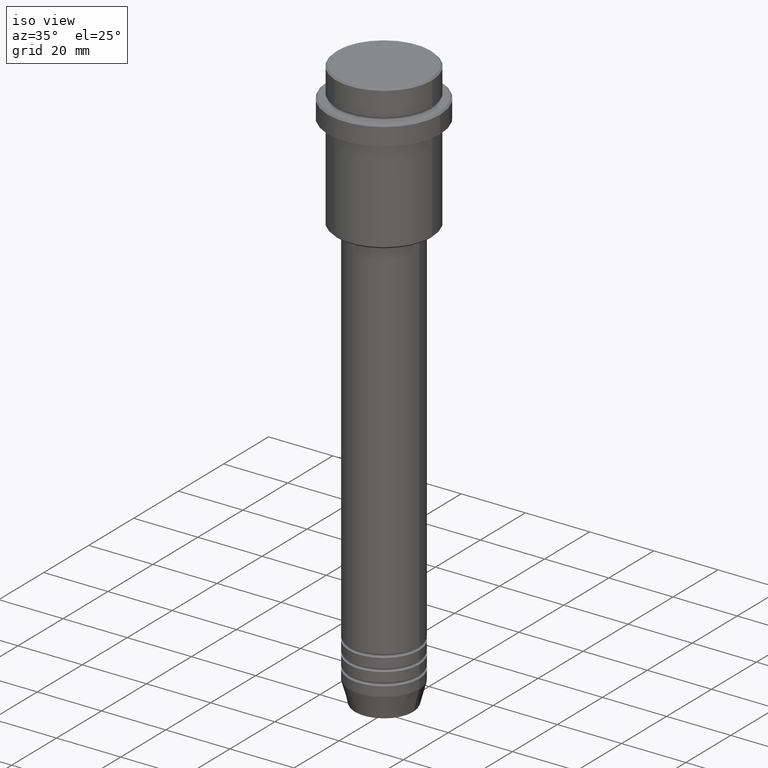
[diagram: clean part render]
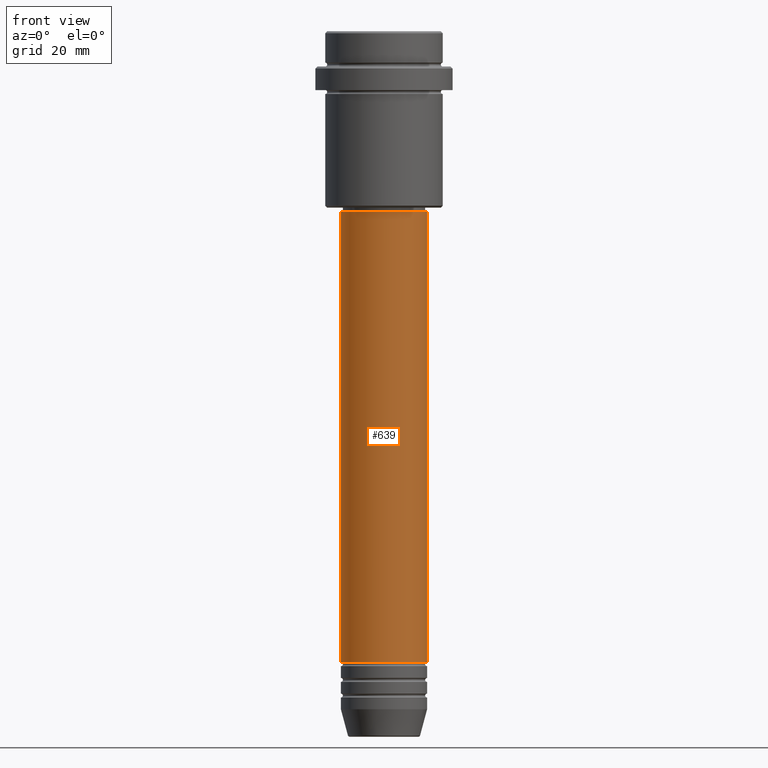
[diagram: tour spotlight — one face highlighted and labeled with its STEP entity id]
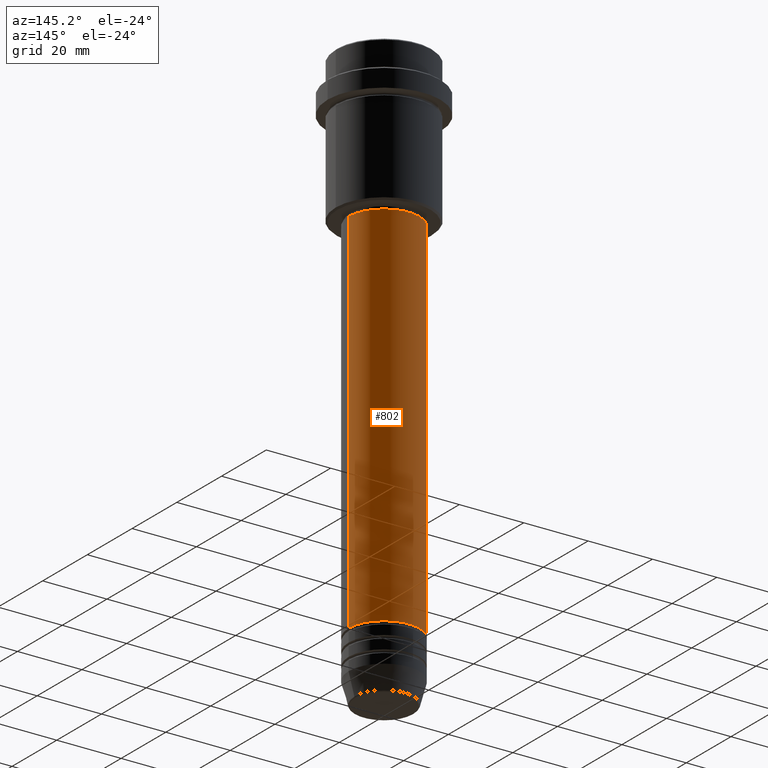
[diagram: tour spotlight — one face highlighted and labeled with its STEP entity id]
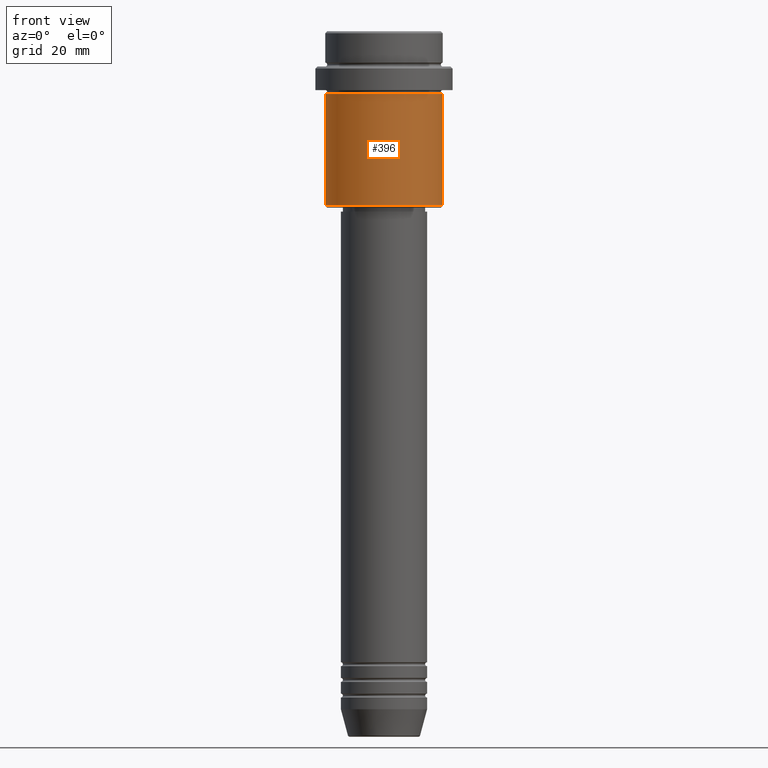
[diagram: tour spotlight — one face highlighted and labeled with its STEP entity id]
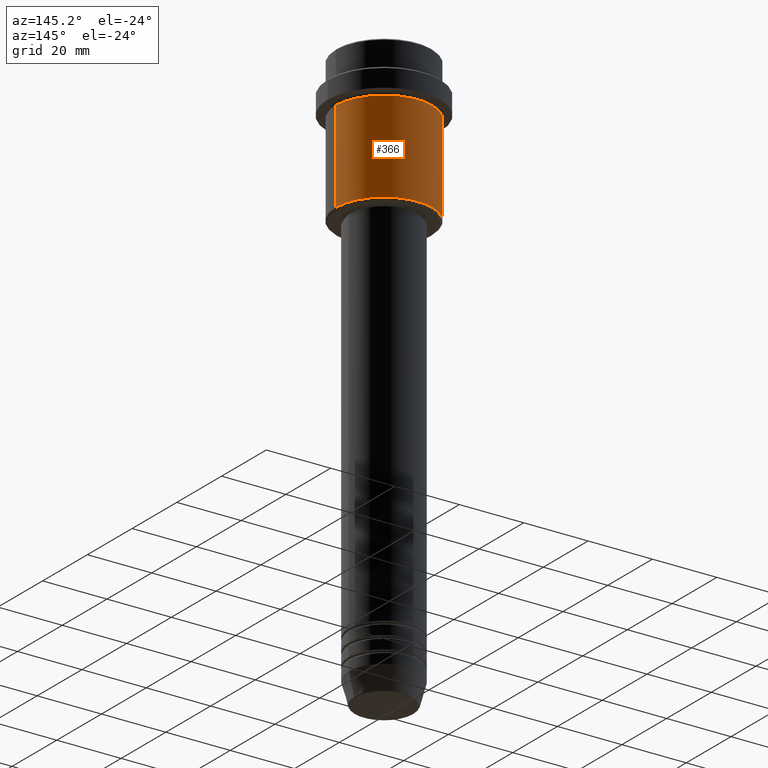
[diagram: tour spotlight — one face highlighted and labeled with its STEP entity id]
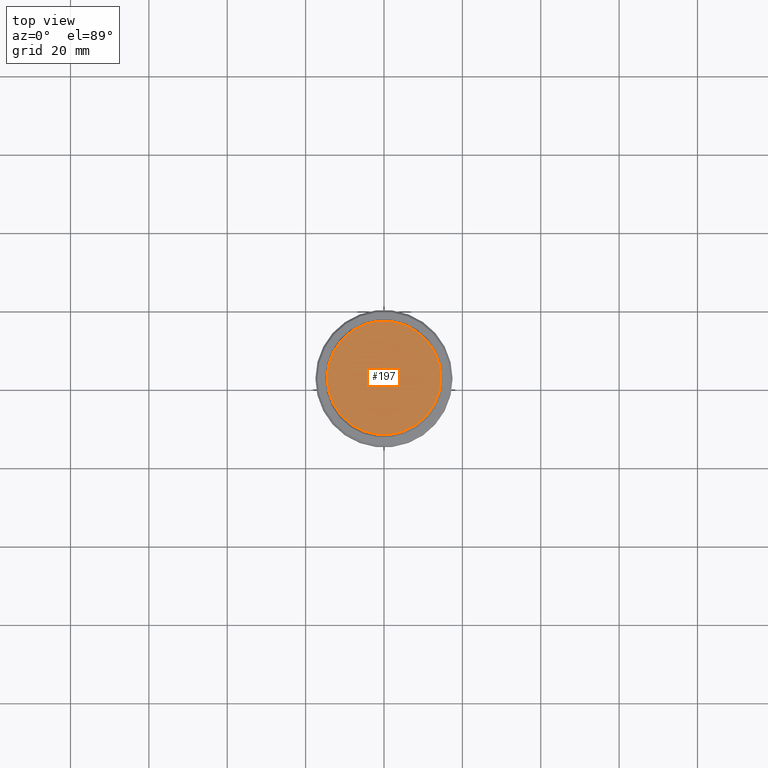
[diagram: tour spotlight — one face highlighted and labeled with its STEP entity id]
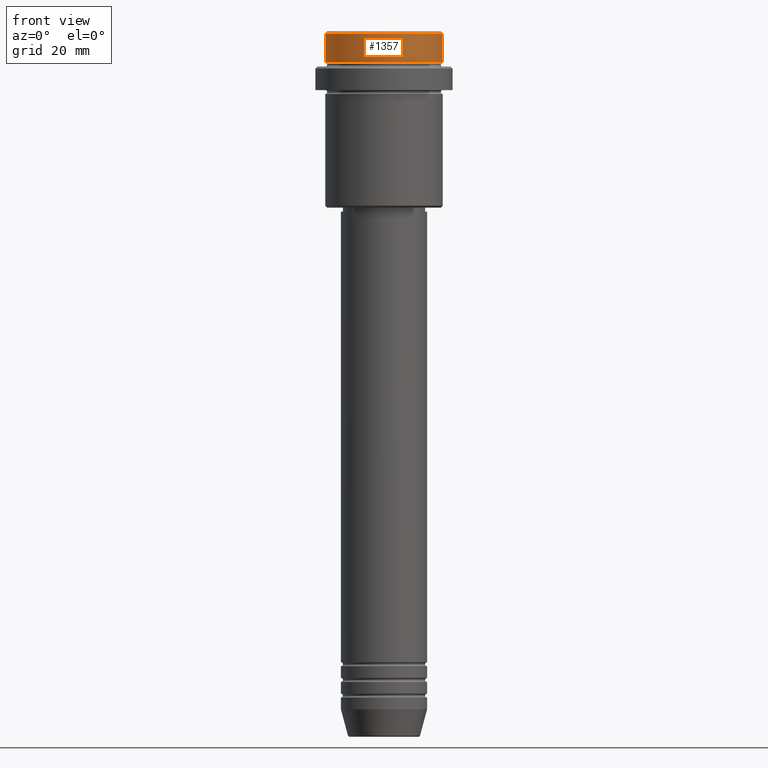
[diagram: tour spotlight — one face highlighted and labeled with its STEP entity id]
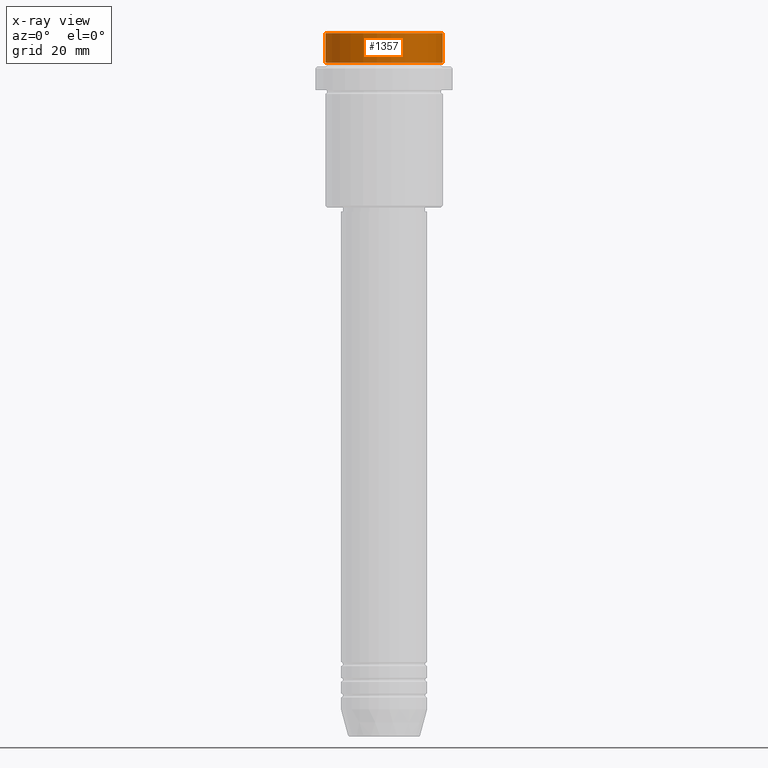
[diagram: x-ray of the same camera — body ghosted, this tour face saturated]
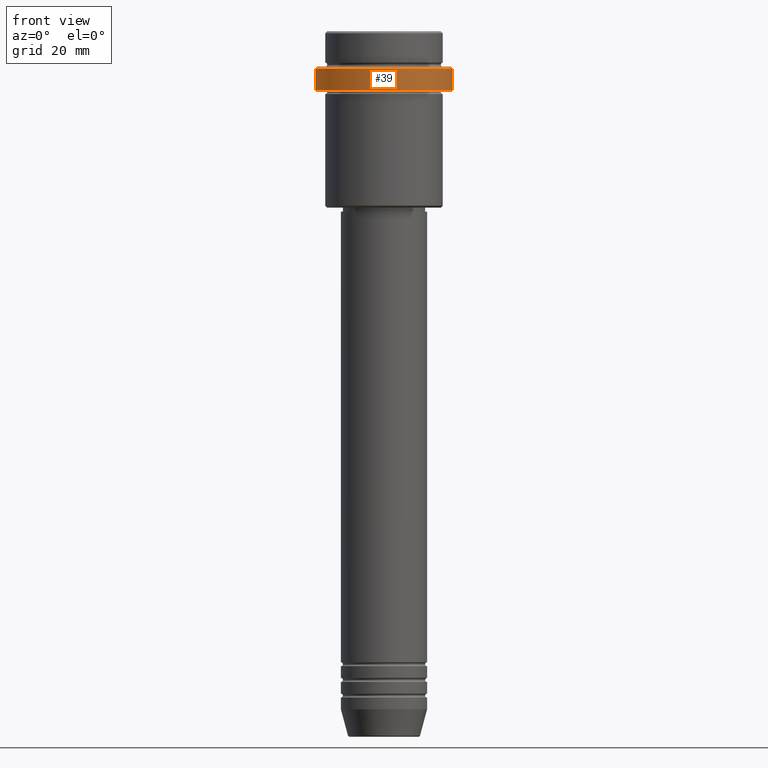
[diagram: tour spotlight — one face highlighted and labeled with its STEP entity id]
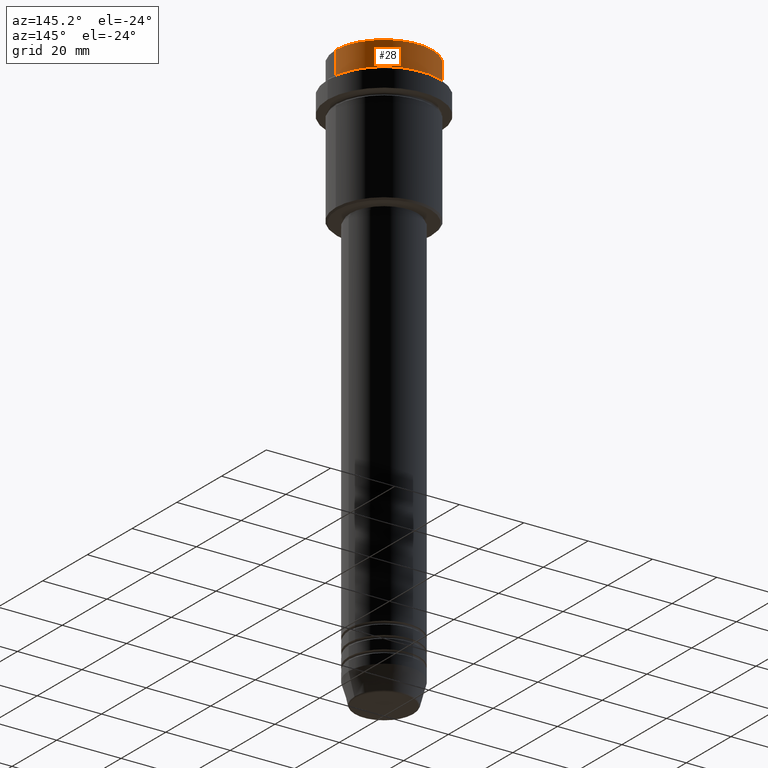
[diagram: tour spotlight — one face highlighted and labeled with its STEP entity id]
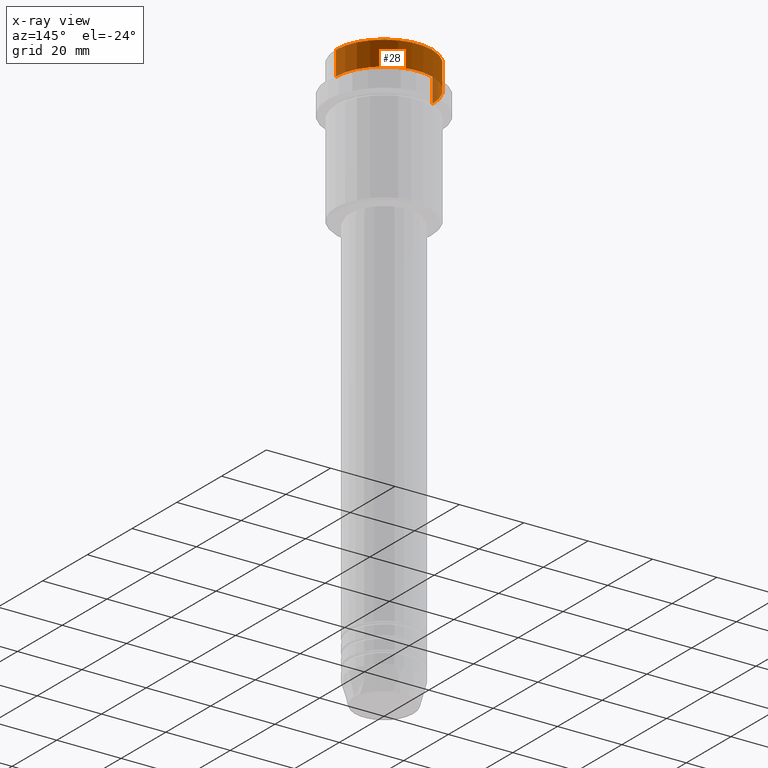
[diagram: x-ray of the same camera — body ghosted, this tour face saturated]
A machine part: a face-by-face anatomy tour. The part has 52 B-rep faces; the first image is the clean iso view, then the 8 largest visible faces are spotlighted one at a time (largest first), each with its STEP entity span.

Face 1 — front view, entity #639. In plain terms, the highlighted cylindrical surface (partial cylindrical patch) has radius 11 mm, axis along (-0, -0, 1).
Definition (entity closure, byte-faithful):
#149 = CARTESIAN_POINT ( 'NONE',  ( -10.99999999999999822, 1.347111479062088207E-15, -46.00000000000000000 ) ) ;
#177 = ORIENTED_EDGE ( 'NONE', *, *, #648, .F. ) ;
#183 = AXIS2_PLACEMENT_3D ( 'NONE', #836, #848, #1173 ) ;
#192 = FACE_OUTER_BOUND ( 'NONE', #314, .T. ) ;
#200 = VECTOR ( 'NONE', #699, 1000.000000000000000 ) ;
#208 = EDGE_CURVE ( 'NONE', #1398, #1175, #320, .T. ) ;
#218 = DIRECTION ( 'NONE',  ( -0.000000000000000000, -0.000000000000000000, 1.000000000000000000 ) ) ;
#242 = EDGE_CURVE ( 'NONE', #590, #521, #342, .T. ) ;
#305 = CYLINDRICAL_SURFACE ( 'NONE', #509, 11.00000000000000000 ) ;
#314 = EDGE_LOOP ( 'NONE', ( #177, #781, #487, #1105 ) ) ;
#320 = CIRCLE ( 'NONE', #183, 11.00000000000000000 ) ;
#342 = CIRCLE ( 'NONE', #508, 10.99999999999999822 ) ;
#376 = CARTESIAN_POINT ( 'NONE',  ( 11.00000000000000000, 0.000000000000000000, 0.000000000000000000 ) ) ;
#487 = ORIENTED_EDGE ( 'NONE', *, *, #572, .T. ) ;
#508 = AXIS2_PLACEMENT_3D ( 'NONE', #1305, #218, #1090 ) ;
#509 = AXIS2_PLACEMENT_3D ( 'NONE', #615, #1286, #1063 ) ;
#521 = VERTEX_POINT ( 'NONE', #1030 ) ;
#572 = EDGE_CURVE ( 'NONE', #1175, #521, #691, .T. ) ;
#590 = VERTEX_POINT ( 'NONE', #149 ) ;
#596 = CARTESIAN_POINT ( 'NONE',  ( -11.00000000000000000, 1.347111479062088405E-15, 0.000000000000000000 ) ) ;
#615 = CARTESIAN_POINT ( 'NONE',  ( 0.000000000000000000, 0.000000000000000000, 0.000000000000000000 ) ) ;
#639 = ADVANCED_FACE ( 'NONE', ( #192 ), #305, .T. ) ;
#648 = EDGE_CURVE ( 'NONE', #1398, #590, #936, .T. ) ;
#691 = LINE ( 'NONE', #376, #200 ) ;
#699 = DIRECTION ( 'NONE',  ( -0.000000000000000000, -0.000000000000000000, 1.000000000000000000 ) ) ;
#781 = ORIENTED_EDGE ( 'NONE', *, *, #208, .T. ) ;
#836 = CARTESIAN_POINT ( 'NONE',  ( 0.000000000000000000, 0.000000000000000000, -160.9999999999999147 ) ) ;
#848 = DIRECTION ( 'NONE',  ( -0.000000000000000000, -0.000000000000000000, 1.000000000000000000 ) ) ;
#936 = LINE ( 'NONE', #596, #1376 ) ;
#1030 = CARTESIAN_POINT ( 'NONE',  ( 10.99999999999999822, 0.000000000000000000, -46.00000000000000000 ) ) ;
#1042 = DIRECTION ( 'NONE',  ( -0.000000000000000000, -0.000000000000000000, 1.000000000000000000 ) ) ;
#1063 = DIRECTION ( 'NONE',  ( 1.000000000000000000, 0.000000000000000000, 0.000000000000000000 ) ) ;
#1090 = DIRECTION ( 'NONE',  ( 1.000000000000000000, 0.000000000000000000, 0.000000000000000000 ) ) ;
#1105 = ORIENTED_EDGE ( 'NONE', *, *, #242, .F. ) ;
#1173 = DIRECTION ( 'NONE',  ( 1.000000000000000000, 0.000000000000000000, 0.000000000000000000 ) ) ;
#1175 = VERTEX_POINT ( 'NONE', #1195 ) ;
#1195 = CARTESIAN_POINT ( 'NONE',  ( 11.00000000000000000, 0.000000000000000000, -160.9999999999999147 ) ) ;
#1286 = DIRECTION ( 'NONE',  ( -0.000000000000000000, -0.000000000000000000, 1.000000000000000000 ) ) ;
#1305 = CARTESIAN_POINT ( 'NONE',  ( 0.000000000000000000, 0.000000000000000000, -46.00000000000000000 ) ) ;
#1340 = CARTESIAN_POINT ( 'NONE',  ( -11.00000000000000000, 1.347111479062088405E-15, -160.9999999999999147 ) ) ;
#1376 = VECTOR ( 'NONE', #1042, 1000.000000000000000 ) ;
#1398 = VERTEX_POINT ( 'NONE', #1340 ) ;

Face 2 — auxiliary view, entity #802. In plain terms, the highlighted cylindrical surface (partial cylindrical patch) has radius 11 mm, axis along (-0, -0, 1).
Definition (entity closure, byte-faithful):
#69 = CIRCLE ( 'NONE', #867, 11.00000000000000000 ) ;
#72 = ORIENTED_EDGE ( 'NONE', *, *, #572, .F. ) ;
#80 = DIRECTION ( 'NONE',  ( 1.000000000000000000, 0.000000000000000000, 0.000000000000000000 ) ) ;
#109 = EDGE_CURVE ( 'NONE', #1175, #1398, #69, .T. ) ;
#128 = CARTESIAN_POINT ( 'NONE',  ( 0.000000000000000000, 0.000000000000000000, 0.000000000000000000 ) ) ;
#149 = CARTESIAN_POINT ( 'NONE',  ( -10.99999999999999822, 1.347111479062088207E-15, -46.00000000000000000 ) ) ;
#200 = VECTOR ( 'NONE', #699, 1000.000000000000000 ) ;
#250 = ORIENTED_EDGE ( 'NONE', *, *, #591, .F. ) ;
#287 = EDGE_LOOP ( 'NONE', ( #738, #1215, #250, #72 ) ) ;
#376 = CARTESIAN_POINT ( 'NONE',  ( 11.00000000000000000, 0.000000000000000000, 0.000000000000000000 ) ) ;
#398 = DIRECTION ( 'NONE',  ( -0.000000000000000000, -0.000000000000000000, 1.000000000000000000 ) ) ;
#457 = AXIS2_PLACEMENT_3D ( 'NONE', #580, #398, #80 ) ;
#521 = VERTEX_POINT ( 'NONE', #1030 ) ;
#526 = AXIS2_PLACEMENT_3D ( 'NONE', #128, #1125, #1108 ) ;
#572 = EDGE_CURVE ( 'NONE', #1175, #521, #691, .T. ) ;
#580 = CARTESIAN_POINT ( 'NONE',  ( 0.000000000000000000, 0.000000000000000000, -46.00000000000000000 ) ) ;
#590 = VERTEX_POINT ( 'NONE', #149 ) ;
#591 = EDGE_CURVE ( 'NONE', #521, #590, #1368, .T. ) ;
#596 = CARTESIAN_POINT ( 'NONE',  ( -11.00000000000000000, 1.347111479062088405E-15, 0.000000000000000000 ) ) ;
#648 = EDGE_CURVE ( 'NONE', #1398, #590, #936, .T. ) ;
#660 = CYLINDRICAL_SURFACE ( 'NONE', #526, 11.00000000000000000 ) ;
#672 = FACE_OUTER_BOUND ( 'NONE', #287, .T. ) ;
#687 = DIRECTION ( 'NONE',  ( -0.000000000000000000, -0.000000000000000000, 1.000000000000000000 ) ) ;
#691 = LINE ( 'NONE', #376, #200 ) ;
#699 = DIRECTION ( 'NONE',  ( -0.000000000000000000, -0.000000000000000000, 1.000000000000000000 ) ) ;
#738 = ORIENTED_EDGE ( 'NONE', *, *, #109, .T. ) ;
#802 = ADVANCED_FACE ( 'NONE', ( #672 ), #660, .T. ) ;
#867 = AXIS2_PLACEMENT_3D ( 'NONE', #1011, #687, #896 ) ;
#896 = DIRECTION ( 'NONE',  ( 1.000000000000000000, 0.000000000000000000, 0.000000000000000000 ) ) ;
#936 = LINE ( 'NONE', #596, #1376 ) ;
#1011 = CARTESIAN_POINT ( 'NONE',  ( 0.000000000000000000, 0.000000000000000000, -160.9999999999999147 ) ) ;
#1030 = CARTESIAN_POINT ( 'NONE',  ( 10.99999999999999822, 0.000000000000000000, -46.00000000000000000 ) ) ;
#1042 = DIRECTION ( 'NONE',  ( -0.000000000000000000, -0.000000000000000000, 1.000000000000000000 ) ) ;
#1108 = DIRECTION ( 'NONE',  ( 1.000000000000000000, 0.000000000000000000, 0.000000000000000000 ) ) ;
#1125 = DIRECTION ( 'NONE',  ( -0.000000000000000000, -0.000000000000000000, 1.000000000000000000 ) ) ;
#1175 = VERTEX_POINT ( 'NONE', #1195 ) ;
#1195 = CARTESIAN_POINT ( 'NONE',  ( 11.00000000000000000, 0.000000000000000000, -160.9999999999999147 ) ) ;
#1215 = ORIENTED_EDGE ( 'NONE', *, *, #648, .T. ) ;
#1340 = CARTESIAN_POINT ( 'NONE',  ( -11.00000000000000000, 1.347111479062088405E-15, -160.9999999999999147 ) ) ;
#1368 = CIRCLE ( 'NONE', #457, 10.99999999999999822 ) ;
#1376 = VECTOR ( 'NONE', #1042, 1000.000000000000000 ) ;
#1398 = VERTEX_POINT ( 'NONE', #1340 ) ;

Face 3 — front view, entity #396. In plain terms, the highlighted cylindrical surface (partial cylindrical patch) has radius 15 mm, axis along (-0, -0, 1).
Definition (entity closure, byte-faithful):
#12 = DIRECTION ( 'NONE',  ( -0.000000000000000000, -0.000000000000000000, 1.000000000000000000 ) ) ;
#17 = CIRCLE ( 'NONE', #341, 15.00000000000000178 ) ;
#47 = AXIS2_PLACEMENT_3D ( 'NONE', #1250, #169, #270 ) ;
#107 = DIRECTION ( 'NONE',  ( -0.000000000000000000, -0.000000000000000000, 1.000000000000000000 ) ) ;
#169 = DIRECTION ( 'NONE',  ( -0.000000000000000000, -0.000000000000000000, 1.000000000000000000 ) ) ;
#225 = AXIS2_PLACEMENT_3D ( 'NONE', #640, #12, #1411 ) ;
#240 = DIRECTION ( 'NONE',  ( -0.000000000000000000, -0.000000000000000000, 1.000000000000000000 ) ) ;
#241 = ORIENTED_EDGE ( 'NONE', *, *, #1296, .F. ) ;
#257 = CYLINDRICAL_SURFACE ( 'NONE', #47, 15.00000000000000000 ) ;
#270 = DIRECTION ( 'NONE',  ( 1.000000000000000000, 0.000000000000000000, 0.000000000000000000 ) ) ;
#274 = CARTESIAN_POINT ( 'NONE',  ( 15.00000000000000000, 0.000000000000000000, 0.000000000000000000 ) ) ;
#306 = VERTEX_POINT ( 'NONE', #1087 ) ;
#341 = AXIS2_PLACEMENT_3D ( 'NONE', #448, #107, #644 ) ;
#373 = CARTESIAN_POINT ( 'NONE',  ( -15.00000000000000355, 1.836970198721029983E-15, -16.00000000000000000 ) ) ;
#396 = ADVANCED_FACE ( 'NONE', ( #679 ), #257, .T. ) ;
#448 = CARTESIAN_POINT ( 'NONE',  ( 0.000000000000000000, 0.000000000000000000, -16.00000000000000000 ) ) ;
#469 = CARTESIAN_POINT ( 'NONE',  ( -15.00000000000000000, 1.836970198721029589E-15, 0.000000000000000000 ) ) ;
#501 = EDGE_LOOP ( 'NONE', ( #241, #1219, #1238, #642 ) ) ;
#560 = VERTEX_POINT ( 'NONE', #918 ) ;
#640 = CARTESIAN_POINT ( 'NONE',  ( 0.000000000000000000, 0.000000000000000000, -44.50000000000000000 ) ) ;
#642 = ORIENTED_EDGE ( 'NONE', *, *, #1248, .F. ) ;
#644 = DIRECTION ( 'NONE',  ( 1.000000000000000000, 0.000000000000000000, 0.000000000000000000 ) ) ;
#679 = FACE_OUTER_BOUND ( 'NONE', #501, .T. ) ;
#816 = LINE ( 'NONE', #469, #825 ) ;
#825 = VECTOR ( 'NONE', #240, 1000.000000000000000 ) ;
#918 = CARTESIAN_POINT ( 'NONE',  ( -15.00000000000000000, 1.836970198721029589E-15, -44.50000000000000000 ) ) ;
#960 = VECTOR ( 'NONE', #1272, 1000.000000000000000 ) ;
#983 = VERTEX_POINT ( 'NONE', #373 ) ;
#1029 = CARTESIAN_POINT ( 'NONE',  ( 15.00000000000000178, 0.000000000000000000, -16.00000000000000000 ) ) ;
#1038 = EDGE_CURVE ( 'NONE', #306, #1133, #1255, .T. ) ;
#1087 = CARTESIAN_POINT ( 'NONE',  ( 15.00000000000000000, 0.000000000000000000, -44.50000000000000000 ) ) ;
#1133 = VERTEX_POINT ( 'NONE', #1029 ) ;
#1140 = CIRCLE ( 'NONE', #225, 15.00000000000000000 ) ;
#1219 = ORIENTED_EDGE ( 'NONE', *, *, #1228, .T. ) ;
#1228 = EDGE_CURVE ( 'NONE', #560, #306, #1140, .T. ) ;
#1238 = ORIENTED_EDGE ( 'NONE', *, *, #1038, .T. ) ;
#1248 = EDGE_CURVE ( 'NONE', #983, #1133, #17, .T. ) ;
#1250 = CARTESIAN_POINT ( 'NONE',  ( 0.000000000000000000, 0.000000000000000000, 0.000000000000000000 ) ) ;
#1255 = LINE ( 'NONE', #274, #960 ) ;
#1272 = DIRECTION ( 'NONE',  ( -0.000000000000000000, -0.000000000000000000, 1.000000000000000000 ) ) ;
#1296 = EDGE_CURVE ( 'NONE', #560, #983, #816, .T. ) ;
#1411 = DIRECTION ( 'NONE',  ( -1.000000000000000000, 0.000000000000000000, 0.000000000000000000 ) ) ;

Face 4 — auxiliary view, entity #366. In plain terms, the highlighted cylindrical surface (partial cylindrical patch) has radius 15 mm, axis along (-0, -0, 1).
Definition (entity closure, byte-faithful):
#15 = ORIENTED_EDGE ( 'NONE', *, *, #1296, .T. ) ;
#147 = CARTESIAN_POINT ( 'NONE',  ( 0.000000000000000000, 0.000000000000000000, 0.000000000000000000 ) ) ;
#240 = DIRECTION ( 'NONE',  ( -0.000000000000000000, -0.000000000000000000, 1.000000000000000000 ) ) ;
#265 = CARTESIAN_POINT ( 'NONE',  ( 0.000000000000000000, 0.000000000000000000, -44.50000000000000000 ) ) ;
#274 = CARTESIAN_POINT ( 'NONE',  ( 15.00000000000000000, 0.000000000000000000, 0.000000000000000000 ) ) ;
#284 = CYLINDRICAL_SURFACE ( 'NONE', #630, 15.00000000000000000 ) ;
#306 = VERTEX_POINT ( 'NONE', #1087 ) ;
#366 = ADVANCED_FACE ( 'NONE', ( #1174 ), #284, .T. ) ;
#373 = CARTESIAN_POINT ( 'NONE',  ( -15.00000000000000355, 1.836970198721029983E-15, -16.00000000000000000 ) ) ;
#382 = CIRCLE ( 'NONE', #938, 15.00000000000000178 ) ;
#469 = CARTESIAN_POINT ( 'NONE',  ( -15.00000000000000000, 1.836970198721029589E-15, 0.000000000000000000 ) ) ;
#522 = EDGE_CURVE ( 'NONE', #306, #560, #963, .T. ) ;
#547 = ORIENTED_EDGE ( 'NONE', *, *, #522, .T. ) ;
#560 = VERTEX_POINT ( 'NONE', #918 ) ;
#563 = AXIS2_PLACEMENT_3D ( 'NONE', #265, #1339, #1008 ) ;
#584 = EDGE_CURVE ( 'NONE', #1133, #983, #382, .T. ) ;
#630 = AXIS2_PLACEMENT_3D ( 'NONE', #147, #1375, #1343 ) ;
#683 = DIRECTION ( 'NONE',  ( 1.000000000000000000, 0.000000000000000000, 0.000000000000000000 ) ) ;
#816 = LINE ( 'NONE', #469, #825 ) ;
#825 = VECTOR ( 'NONE', #240, 1000.000000000000000 ) ;
#893 = DIRECTION ( 'NONE',  ( -0.000000000000000000, -0.000000000000000000, 1.000000000000000000 ) ) ;
#900 = EDGE_LOOP ( 'NONE', ( #547, #15, #943, #1167 ) ) ;
#918 = CARTESIAN_POINT ( 'NONE',  ( -15.00000000000000000, 1.836970198721029589E-15, -44.50000000000000000 ) ) ;
#938 = AXIS2_PLACEMENT_3D ( 'NONE', #1127, #893, #683 ) ;
#943 = ORIENTED_EDGE ( 'NONE', *, *, #584, .F. ) ;
#960 = VECTOR ( 'NONE', #1272, 1000.000000000000000 ) ;
#963 = CIRCLE ( 'NONE', #563, 15.00000000000000000 ) ;
#983 = VERTEX_POINT ( 'NONE', #373 ) ;
#1008 = DIRECTION ( 'NONE',  ( -1.000000000000000000, 0.000000000000000000, 0.000000000000000000 ) ) ;
#1029 = CARTESIAN_POINT ( 'NONE',  ( 15.00000000000000178, 0.000000000000000000, -16.00000000000000000 ) ) ;
#1038 = EDGE_CURVE ( 'NONE', #306, #1133, #1255, .T. ) ;
#1087 = CARTESIAN_POINT ( 'NONE',  ( 15.00000000000000000, 0.000000000000000000, -44.50000000000000000 ) ) ;
#1127 = CARTESIAN_POINT ( 'NONE',  ( 0.000000000000000000, 0.000000000000000000, -16.00000000000000000 ) ) ;
#1133 = VERTEX_POINT ( 'NONE', #1029 ) ;
#1167 = ORIENTED_EDGE ( 'NONE', *, *, #1038, .F. ) ;
#1174 = FACE_OUTER_BOUND ( 'NONE', #900, .T. ) ;
#1255 = LINE ( 'NONE', #274, #960 ) ;
#1272 = DIRECTION ( 'NONE',  ( -0.000000000000000000, -0.000000000000000000, 1.000000000000000000 ) ) ;
#1296 = EDGE_CURVE ( 'NONE', #560, #983, #816, .T. ) ;
#1339 = DIRECTION ( 'NONE',  ( -0.000000000000000000, -0.000000000000000000, 1.000000000000000000 ) ) ;
#1343 = DIRECTION ( 'NONE',  ( 1.000000000000000000, 0.000000000000000000, 0.000000000000000000 ) ) ;
#1375 = DIRECTION ( 'NONE',  ( -0.000000000000000000, -0.000000000000000000, 1.000000000000000000 ) ) ;

Face 5 — top view, entity #197. In plain terms, the highlighted planar face has unit normal (0, -0, 1).
Definition (entity closure, byte-faithful):
#110 = CIRCLE ( 'NONE', #583, 14.50000000000003908 ) ;
#156 = DIRECTION ( 'NONE',  ( 1.000000000000000000, 0.000000000000000000, 0.000000000000000000 ) ) ;
#197 = ADVANCED_FACE ( 'NONE', ( #516 ), #947, .T. ) ;
#232 = EDGE_CURVE ( 'NONE', #837, #620, #935, .T. ) ;
#254 = AXIS2_PLACEMENT_3D ( 'NONE', #715, #285, #395 ) ;
#282 = CARTESIAN_POINT ( 'NONE',  ( -14.50000000000003908, 0.000000000000000000, 0.000000000000000000 ) ) ;
#285 = DIRECTION ( 'NONE',  ( 0.000000000000000000, -0.000000000000000000, 1.000000000000000000 ) ) ;
#367 = AXIS2_PLACEMENT_3D ( 'NONE', #982, #761, #855 ) ;
#395 = DIRECTION ( 'NONE',  ( 1.000000000000000000, 0.000000000000000000, 0.000000000000000000 ) ) ;
#402 = CARTESIAN_POINT ( 'NONE',  ( 14.50000000000003908, 1.806354028742348168E-15, 0.000000000000000000 ) ) ;
#516 = FACE_OUTER_BOUND ( 'NONE', #1013, .T. ) ;
#583 = AXIS2_PLACEMENT_3D ( 'NONE', #756, #803, #156 ) ;
#620 = VERTEX_POINT ( 'NONE', #282 ) ;
#715 = CARTESIAN_POINT ( 'NONE',  ( 0.000000000000000000, 0.000000000000000000, 0.000000000000000000 ) ) ;
#756 = CARTESIAN_POINT ( 'NONE',  ( 0.000000000000000000, 0.000000000000000000, 0.000000000000000000 ) ) ;
#761 = DIRECTION ( 'NONE',  ( -0.000000000000000000, -0.000000000000000000, 1.000000000000000000 ) ) ;
#803 = DIRECTION ( 'NONE',  ( -0.000000000000000000, -0.000000000000000000, 1.000000000000000000 ) ) ;
#834 = ORIENTED_EDGE ( 'NONE', *, *, #949, .T. ) ;
#837 = VERTEX_POINT ( 'NONE', #402 ) ;
#855 = DIRECTION ( 'NONE',  ( 1.000000000000000000, 0.000000000000000000, 0.000000000000000000 ) ) ;
#935 = CIRCLE ( 'NONE', #367, 14.50000000000003908 ) ;
#947 = PLANE ( 'NONE',  #254 ) ;
#949 = EDGE_CURVE ( 'NONE', #620, #837, #110, .T. ) ;
#982 = CARTESIAN_POINT ( 'NONE',  ( 0.000000000000000000, 0.000000000000000000, 0.000000000000000000 ) ) ;
#989 = ORIENTED_EDGE ( 'NONE', *, *, #232, .T. ) ;
#1013 = EDGE_LOOP ( 'NONE', ( #834, #989 ) ) ;

Face 6 — front view, entity #1357. An x-ray twin of the same camera follows (body ghosted, this face saturated) — the face is partly hidden behind the body. In plain terms, the highlighted cylindrical surface (partial cylindrical patch) has radius 15 mm, axis along (-0, -0, 1).
Definition (entity closure, byte-faithful):
#8 = ORIENTED_EDGE ( 'NONE', *, *, #1279, .F. ) ;
#19 = FACE_OUTER_BOUND ( 'NONE', #518, .T. ) ;
#32 = DIRECTION ( 'NONE',  ( 1.000000000000000000, 0.000000000000000000, 0.000000000000000000 ) ) ;
#53 = DIRECTION ( 'NONE',  ( -0.000000000000000000, -0.000000000000000000, 1.000000000000000000 ) ) ;
#101 = DIRECTION ( 'NONE',  ( -0.000000000000000000, -0.000000000000000000, 1.000000000000000000 ) ) ;
#143 = DIRECTION ( 'NONE',  ( -0.000000000000000000, -0.000000000000000000, 1.000000000000000000 ) ) ;
#191 = VERTEX_POINT ( 'NONE', #1379 ) ;
#223 = AXIS2_PLACEMENT_3D ( 'NONE', #1220, #143, #32 ) ;
#231 = DIRECTION ( 'NONE',  ( -0.000000000000000000, -0.000000000000000000, 1.000000000000000000 ) ) ;
#244 = DIRECTION ( 'NONE',  ( 1.000000000000000000, 0.000000000000000000, 0.000000000000000000 ) ) ;
#300 = VECTOR ( 'NONE', #101, 1000.000000000000000 ) ;
#330 = LINE ( 'NONE', #758, #300 ) ;
#443 = CARTESIAN_POINT ( 'NONE',  ( -15.00000000000000000, 1.836970198721029589E-15, 0.000000000000000000 ) ) ;
#444 = VERTEX_POINT ( 'NONE', #1118 ) ;
#449 = AXIS2_PLACEMENT_3D ( 'NONE', #503, #730, #523 ) ;
#503 = CARTESIAN_POINT ( 'NONE',  ( 0.000000000000000000, 0.000000000000000000, -0.4999999999999831246 ) ) ;
#518 = EDGE_LOOP ( 'NONE', ( #8, #557, #1062, #1113 ) ) ;
#523 = DIRECTION ( 'NONE',  ( 1.000000000000000000, 0.000000000000000000, 0.000000000000000000 ) ) ;
#557 = ORIENTED_EDGE ( 'NONE', *, *, #811, .T. ) ;
#658 = EDGE_CURVE ( 'NONE', #1179, #1314, #1309, .T. ) ;
#677 = CARTESIAN_POINT ( 'NONE',  ( -15.00000000000000000, 1.836970198721029589E-15, -0.4999999999999831246 ) ) ;
#692 = CYLINDRICAL_SURFACE ( 'NONE', #1144, 15.00000000000000000 ) ;
#730 = DIRECTION ( 'NONE',  ( 0.000000000000000000, 0.000000000000000000, -1.000000000000000000 ) ) ;
#758 = CARTESIAN_POINT ( 'NONE',  ( 15.00000000000000000, 0.000000000000000000, 0.000000000000000000 ) ) ;
#786 = CARTESIAN_POINT ( 'NONE',  ( 0.000000000000000000, 0.000000000000000000, 0.000000000000000000 ) ) ;
#811 = EDGE_CURVE ( 'NONE', #191, #444, #1302, .T. ) ;
#885 = VECTOR ( 'NONE', #231, 1000.000000000000000 ) ;
#968 = CARTESIAN_POINT ( 'NONE',  ( 15.00000000000000000, 0.000000000000000000, -0.4999999999999831246 ) ) ;
#984 = LINE ( 'NONE', #443, #885 ) ;
#1062 = ORIENTED_EDGE ( 'NONE', *, *, #1142, .T. ) ;
#1113 = ORIENTED_EDGE ( 'NONE', *, *, #658, .T. ) ;
#1118 = CARTESIAN_POINT ( 'NONE',  ( 15.00000000000000000, 0.000000000000000000, -7.999999999999998224 ) ) ;
#1142 = EDGE_CURVE ( 'NONE', #444, #1179, #330, .T. ) ;
#1144 = AXIS2_PLACEMENT_3D ( 'NONE', #786, #53, #244 ) ;
#1179 = VERTEX_POINT ( 'NONE', #968 ) ;
#1220 = CARTESIAN_POINT ( 'NONE',  ( 0.000000000000000000, 0.000000000000000000, -7.999999999999998224 ) ) ;
#1279 = EDGE_CURVE ( 'NONE', #191, #1314, #984, .T. ) ;
#1302 = CIRCLE ( 'NONE', #223, 15.00000000000000000 ) ;
#1309 = CIRCLE ( 'NONE', #449, 15.00000000000000000 ) ;
#1314 = VERTEX_POINT ( 'NONE', #677 ) ;
#1357 = ADVANCED_FACE ( 'NONE', ( #19 ), #692, .T. ) ;
#1379 = CARTESIAN_POINT ( 'NONE',  ( -15.00000000000000000, 1.836970198721029589E-15, -7.999999999999998224 ) ) ;

Face 7 — front view, entity #39. In plain terms, the highlighted cylindrical surface (partial cylindrical patch) has radius 17.5 mm, axis along (-0, -0, 1).
Definition (entity closure, byte-faithful):
#39 = ADVANCED_FACE ( 'NONE', ( #233 ), #74, .T. ) ;
#60 = CARTESIAN_POINT ( 'NONE',  ( 17.50000000000000000, 0.000000000000000000, -15.00000000000000000 ) ) ;
#74 = CYLINDRICAL_SURFACE ( 'NONE', #1397, 17.50000000000000000 ) ;
#90 = ORIENTED_EDGE ( 'NONE', *, *, #750, .T. ) ;
#123 = ORIENTED_EDGE ( 'NONE', *, *, #757, .F. ) ;
#131 = DIRECTION ( 'NONE',  ( -0.000000000000000000, -0.000000000000000000, 1.000000000000000000 ) ) ;
#138 = LINE ( 'NONE', #1128, #798 ) ;
#196 = CARTESIAN_POINT ( 'NONE',  ( -17.50000000000000000, 2.143131898507868248E-15, -15.00000000000000000 ) ) ;
#233 = FACE_OUTER_BOUND ( 'NONE', #1306, .T. ) ;
#243 = VERTEX_POINT ( 'NONE', #637 ) ;
#249 = CARTESIAN_POINT ( 'NONE',  ( 17.50000000000000000, 0.000000000000000000, -9.500000000000000000 ) ) ;
#351 = VERTEX_POINT ( 'NONE', #60 ) ;
#473 = DIRECTION ( 'NONE',  ( 0.000000000000000000, 0.000000000000000000, -1.000000000000000000 ) ) ;
#527 = CIRCLE ( 'NONE', #1396, 17.50000000000000000 ) ;
#564 = AXIS2_PLACEMENT_3D ( 'NONE', #790, #473, #1226 ) ;
#570 = ORIENTED_EDGE ( 'NONE', *, *, #1247, .T. ) ;
#616 = DIRECTION ( 'NONE',  ( -0.000000000000000000, -0.000000000000000000, 1.000000000000000000 ) ) ;
#637 = CARTESIAN_POINT ( 'NONE',  ( -17.50000000000000000, 2.143131898507868248E-15, -9.500000000000000000 ) ) ;
#750 = EDGE_CURVE ( 'NONE', #760, #243, #933, .T. ) ;
#757 = EDGE_CURVE ( 'NONE', #897, #243, #914, .T. ) ;
#760 = VERTEX_POINT ( 'NONE', #249 ) ;
#790 = CARTESIAN_POINT ( 'NONE',  ( 0.000000000000000000, 0.000000000000000000, -9.500000000000000000 ) ) ;
#798 = VECTOR ( 'NONE', #131, 1000.000000000000000 ) ;
#856 = DIRECTION ( 'NONE',  ( 1.000000000000000000, 0.000000000000000000, 0.000000000000000000 ) ) ;
#876 = DIRECTION ( 'NONE',  ( 1.000000000000000000, 0.000000000000000000, 0.000000000000000000 ) ) ;
#897 = VERTEX_POINT ( 'NONE', #196 ) ;
#898 = DIRECTION ( 'NONE',  ( -0.000000000000000000, -0.000000000000000000, 1.000000000000000000 ) ) ;
#914 = LINE ( 'NONE', #1353, #1000 ) ;
#933 = CIRCLE ( 'NONE', #564, 17.50000000000000000 ) ;
#1000 = VECTOR ( 'NONE', #898, 1000.000000000000000 ) ;
#1088 = DIRECTION ( 'NONE',  ( -0.000000000000000000, -0.000000000000000000, 1.000000000000000000 ) ) ;
#1091 = ORIENTED_EDGE ( 'NONE', *, *, #1403, .T. ) ;
#1128 = CARTESIAN_POINT ( 'NONE',  ( 17.50000000000000000, 0.000000000000000000, 0.000000000000000000 ) ) ;
#1180 = CARTESIAN_POINT ( 'NONE',  ( 0.000000000000000000, 0.000000000000000000, 0.000000000000000000 ) ) ;
#1226 = DIRECTION ( 'NONE',  ( 1.000000000000000000, 0.000000000000000000, 0.000000000000000000 ) ) ;
#1247 = EDGE_CURVE ( 'NONE', #897, #351, #527, .T. ) ;
#1306 = EDGE_LOOP ( 'NONE', ( #123, #570, #1091, #90 ) ) ;
#1310 = CARTESIAN_POINT ( 'NONE',  ( 0.000000000000000000, 0.000000000000000000, -15.00000000000000000 ) ) ;
#1353 = CARTESIAN_POINT ( 'NONE',  ( -17.50000000000000000, 2.143131898507868248E-15, 0.000000000000000000 ) ) ;
#1396 = AXIS2_PLACEMENT_3D ( 'NONE', #1310, #1088, #876 ) ;
#1397 = AXIS2_PLACEMENT_3D ( 'NONE', #1180, #616, #856 ) ;
#1403 = EDGE_CURVE ( 'NONE', #351, #760, #138, .T. ) ;

Face 8 — auxiliary view, entity #28. An x-ray twin of the same camera follows (body ghosted, this face saturated) — the face is partly hidden behind the body. In plain terms, the highlighted cylindrical surface (partial cylindrical patch) has radius 15 mm, axis along (-0, -0, 1).
Definition (entity closure, byte-faithful):
#28 = ADVANCED_FACE ( 'NONE', ( #1176 ), #737, .T. ) ;
#101 = DIRECTION ( 'NONE',  ( -0.000000000000000000, -0.000000000000000000, 1.000000000000000000 ) ) ;
#191 = VERTEX_POINT ( 'NONE', #1379 ) ;
#231 = DIRECTION ( 'NONE',  ( -0.000000000000000000, -0.000000000000000000, 1.000000000000000000 ) ) ;
#299 = EDGE_CURVE ( 'NONE', #1314, #1179, #1234, .T. ) ;
#300 = VECTOR ( 'NONE', #101, 1000.000000000000000 ) ;
#330 = LINE ( 'NONE', #758, #300 ) ;
#340 = ORIENTED_EDGE ( 'NONE', *, *, #1142, .F. ) ;
#434 = AXIS2_PLACEMENT_3D ( 'NONE', #952, #1202, #1318 ) ;
#443 = CARTESIAN_POINT ( 'NONE',  ( -15.00000000000000000, 1.836970198721029589E-15, 0.000000000000000000 ) ) ;
#444 = VERTEX_POINT ( 'NONE', #1118 ) ;
#502 = AXIS2_PLACEMENT_3D ( 'NONE', #1412, #818, #1078 ) ;
#633 = DIRECTION ( 'NONE',  ( 0.000000000000000000, 0.000000000000000000, -1.000000000000000000 ) ) ;
#664 = ORIENTED_EDGE ( 'NONE', *, *, #875, .T. ) ;
#677 = CARTESIAN_POINT ( 'NONE',  ( -15.00000000000000000, 1.836970198721029589E-15, -0.4999999999999831246 ) ) ;
#729 = ORIENTED_EDGE ( 'NONE', *, *, #299, .T. ) ;
#737 = CYLINDRICAL_SURFACE ( 'NONE', #434, 15.00000000000000000 ) ;
#758 = CARTESIAN_POINT ( 'NONE',  ( 15.00000000000000000, 0.000000000000000000, 0.000000000000000000 ) ) ;
#764 = CIRCLE ( 'NONE', #502, 15.00000000000000000 ) ;
#818 = DIRECTION ( 'NONE',  ( -0.000000000000000000, -0.000000000000000000, 1.000000000000000000 ) ) ;
#874 = ORIENTED_EDGE ( 'NONE', *, *, #1279, .T. ) ;
#875 = EDGE_CURVE ( 'NONE', #444, #191, #764, .T. ) ;
#885 = VECTOR ( 'NONE', #231, 1000.000000000000000 ) ;
#952 = CARTESIAN_POINT ( 'NONE',  ( 0.000000000000000000, 0.000000000000000000, 0.000000000000000000 ) ) ;
#968 = CARTESIAN_POINT ( 'NONE',  ( 15.00000000000000000, 0.000000000000000000, -0.4999999999999831246 ) ) ;
#984 = LINE ( 'NONE', #443, #885 ) ;
#1007 = EDGE_LOOP ( 'NONE', ( #664, #874, #729, #340 ) ) ;
#1078 = DIRECTION ( 'NONE',  ( 1.000000000000000000, 0.000000000000000000, 0.000000000000000000 ) ) ;
#1082 = DIRECTION ( 'NONE',  ( 1.000000000000000000, 0.000000000000000000, 0.000000000000000000 ) ) ;
#1095 = AXIS2_PLACEMENT_3D ( 'NONE', #1187, #633, #1082 ) ;
#1118 = CARTESIAN_POINT ( 'NONE',  ( 15.00000000000000000, 0.000000000000000000, -7.999999999999998224 ) ) ;
#1142 = EDGE_CURVE ( 'NONE', #444, #1179, #330, .T. ) ;
#1176 = FACE_OUTER_BOUND ( 'NONE', #1007, .T. ) ;
#1179 = VERTEX_POINT ( 'NONE', #968 ) ;
#1187 = CARTESIAN_POINT ( 'NONE',  ( 0.000000000000000000, 0.000000000000000000, -0.4999999999999831246 ) ) ;
#1202 = DIRECTION ( 'NONE',  ( -0.000000000000000000, -0.000000000000000000, 1.000000000000000000 ) ) ;
#1234 = CIRCLE ( 'NONE', #1095, 15.00000000000000000 ) ;
#1279 = EDGE_CURVE ( 'NONE', #191, #1314, #984, .T. ) ;
#1314 = VERTEX_POINT ( 'NONE', #677 ) ;
#1318 = DIRECTION ( 'NONE',  ( 1.000000000000000000, 0.000000000000000000, 0.000000000000000000 ) ) ;
#1379 = CARTESIAN_POINT ( 'NONE',  ( -15.00000000000000000, 1.836970198721029589E-15, -7.999999999999998224 ) ) ;
#1412 = CARTESIAN_POINT ( 'NONE',  ( 0.000000000000000000, 0.000000000000000000, -7.999999999999998224 ) ) ;